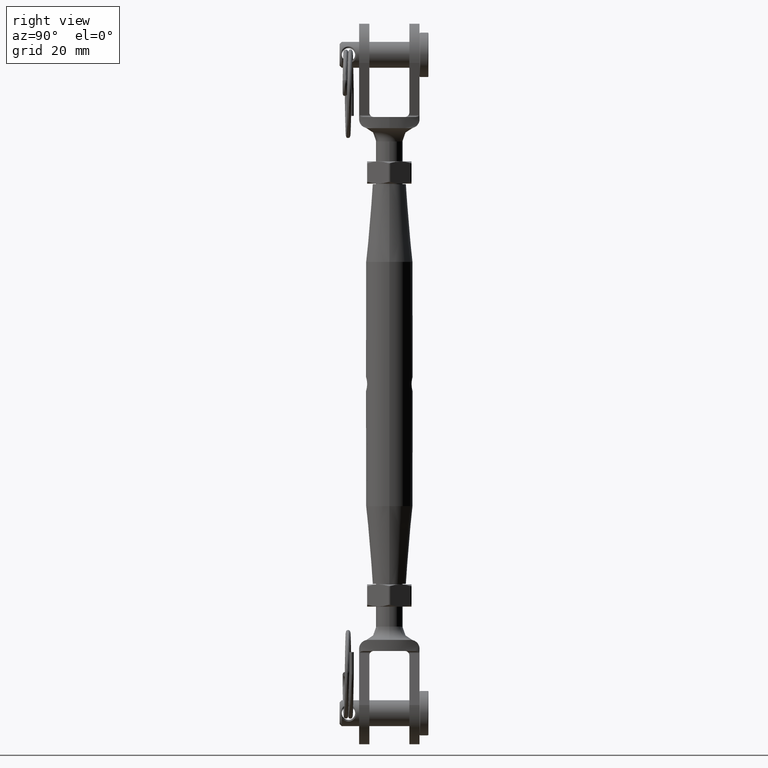
[diagram: clean part render]
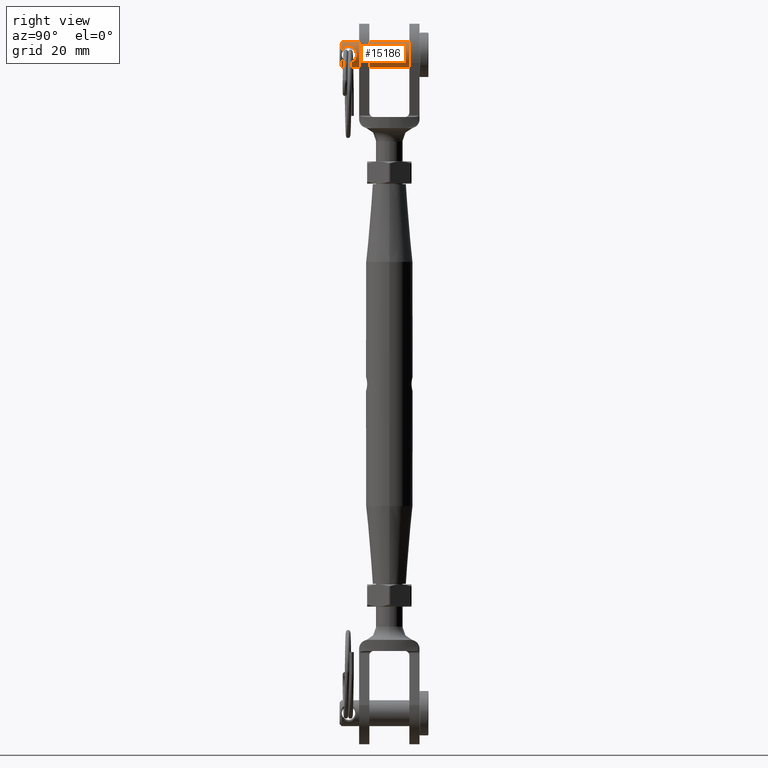
[diagram: same view with one face highlighted and labeled with its STEP entity id]
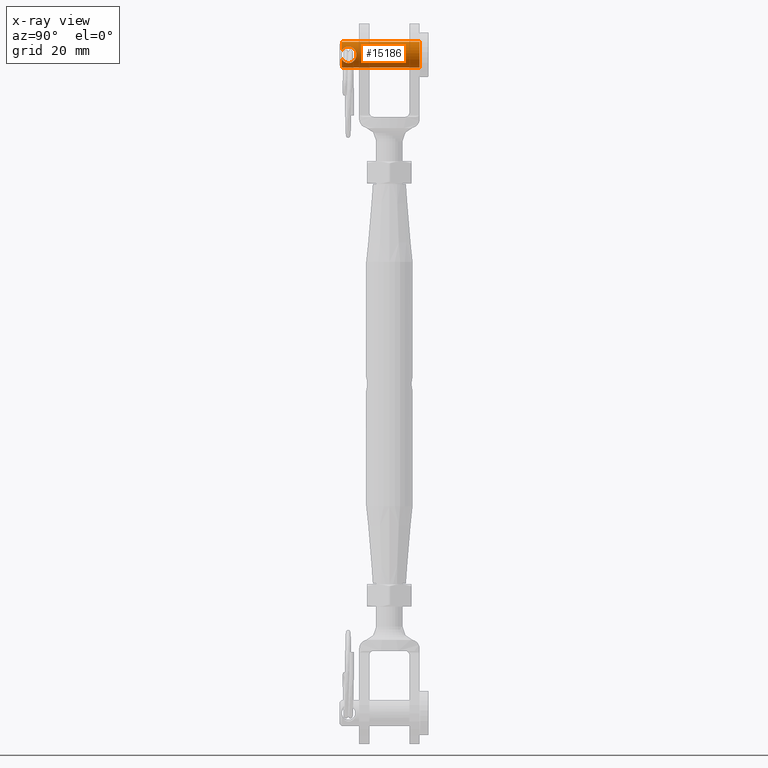
[diagram: x-ray of the same camera — body ghosted, the highlighted face saturated]
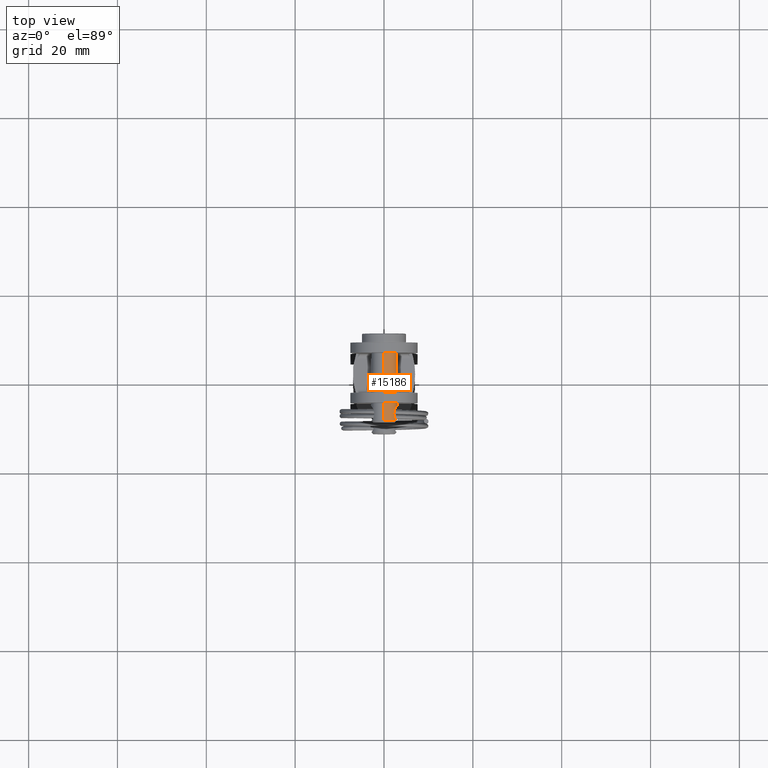
[diagram: same view with one face highlighted and labeled with its STEP entity id]
A machine part, right view. The second image highlights one B-rep face of the part: STEP entity #15186.
The next image is the same camera in x-ray: the body ghosted, the highlighted face saturated — about 0% of this face is hidden behind the body in this view.
A second angle (top view) of the same face is appended — the face is thin or edge-on in the first view.
In plain terms, the highlighted cylindrical surface (edge-blend (fillet) strip) has radius 2.9 mm, axis along (0, 1, 0).
Its self-contained STEP definition (entity closure, byte-faithful):
#178 = ORIENTED_EDGE ( 'NONE', *, *, #23157, .F. ) ;
#216 = AXIS2_PLACEMENT_3D ( 'NONE', #9148, #29250, #9237 ) ;
#236 = VERTEX_POINT ( 'NONE', #13990 ) ;
#537 = EDGE_CURVE ( 'NONE', #10482, #24558, #1447, .T. ) ;
#615 = CARTESIAN_POINT ( 'NONE',  ( -2.744661534245521400, 16.44004045895337600, 0.9657223208795287000 ) ) ;
#722 = CARTESIAN_POINT ( 'NONE',  ( -2.294106125083337700, 18.60426528350829000, 1.774749690161040200 ) ) ;
#820 = CARTESIAN_POINT ( 'NONE',  ( -2.605556378203564400, 19.32418764393705100, 1.278449941367773500 ) ) ;
#962 = EDGE_CURVE ( 'NONE', #24584, #236, #3563, .T. ) ;
#1114 = CARTESIAN_POINT ( 'NONE',  ( -2.210732446713502800, 18.00425831773796000, 1.876875608304433300 ) ) ;
#1199 = CARTESIAN_POINT ( 'NONE',  ( -2.900324119571199500, 16.20153612232974900, -0.2489128024667275100 ) ) ;
#1377 = ORIENTED_EDGE ( 'NONE', *, *, #12481, .T. ) ;
#1446 = CARTESIAN_POINT ( 'NONE',  ( -2.210727977664083400, 17.99999999999999600, -1.876880872291388100 ) ) ;
#1447 = B_SPLINE_CURVE_WITH_KNOTS ( 'NONE', 3,
 ( #9806, #18805, #820, #7839, #7738, #10085, #722, #12241, #23771, #1114 ),
 .UNSPECIFIED., .F., .F.,
 ( 4, 2, 2, 2, 4 ),
 ( 0.3421832207658255800, 0.3816374155743692000, 0.4210916103829127600, 0.4605458051914563800, 0.5000000000000000000 ),
 .UNSPECIFIED. ) ;
#1594 = VERTEX_POINT ( 'NONE', #5063 ) ;
#1788 = DIRECTION ( 'NONE',  ( -0.0000000000000000000, -1.000000000000000000, -0.0000000000000000000 ) ) ;
#1934 = DIRECTION ( 'NONE',  ( -0.0000000000000000000, -1.000000000000000000, -0.0000000000000000000 ) ) ;
#2885 = CARTESIAN_POINT ( 'NONE',  ( -2.858264125714875500, 16.26433546103258700, 0.5060697297217258100 ) ) ;
#2907 = VECTOR ( 'NONE', #1788, 1000.000000000000000 ) ;
#3370 = EDGE_CURVE ( 'NONE', #12362, #6600, #11271, .T. ) ;
#3453 = CARTESIAN_POINT ( 'NONE',  ( -2.221649457012812200, 17.75884103580907000, -1.864228788218121000 ) ) ;
#3563 = CIRCLE ( 'NONE', #4982, 2.900000000000003000 ) ;
#3748 = CARTESIAN_POINT ( 'NONE',  ( 3.551475717527325800E-016, 0.0000000000000000000, 2.900000000000001700 ) ) ;
#4684 = B_SPLINE_CURVE_WITH_KNOTS ( 'NONE', 3,
 ( #1446, #8464, #13086, #12873, #22231, #15355, #10811, #26689, #22119, #21919 ),
 .UNSPECIFIED., .F., .F.,
 ( 4, 2, 2, 2, 4 ),
 ( 0.0000000000000000000, 0.03958964347557814000, 0.07917928695115628000, 0.1187689304267344200, 0.1583585739023125600 ),
 .UNSPECIFIED. ) ;
#4982 = AXIS2_PLACEMENT_3D ( 'NONE', #23412, #27966, #25884 ) ;
#5063 = CARTESIAN_POINT ( 'NONE',  ( -2.210727977664083400, 17.99999999999999600, -1.876880872291388100 ) ) ;
#5440 = CARTESIAN_POINT ( 'NONE',  ( -2.210732446713502800, 18.00425831773796000, 1.876875608304433300 ) ) ;
#5517 = CARTESIAN_POINT ( 'NONE',  ( 3.551475717527327300E-016, 1.999999999999999100, 2.900000000000003000 ) ) ;
#5541 = CARTESIAN_POINT ( 'NONE',  ( -2.262008735606944900, 17.52714326857444900, 1.815026992286154200 ) ) ;
#5802 = ORIENTED_EDGE ( 'NONE', *, *, #15018, .T. ) ;
#6600 = VERTEX_POINT ( 'NONE', #10599 ) ;
#6985 = CARTESIAN_POINT ( 'NONE',  ( 0.0000000000000000000, 19.49999999999999600, 0.0000000000000000000 ) ) ;
#7078 = ORIENTED_EDGE ( 'NONE', *, *, #19716, .T. ) ;
#7723 = CARTESIAN_POINT ( 'NONE',  ( -2.213207700018780400, 17.88318045289172500, 1.873973681876886000 ) ) ;
#7738 = CARTESIAN_POINT ( 'NONE',  ( -2.438972241560712500, 18.99377367803615300, 1.571366693533130300 ) ) ;
#7824 = CARTESIAN_POINT ( 'NONE',  ( -2.361795564576804300, 17.19737945248703800, 1.683840306624895300 ) ) ;
#7839 = CARTESIAN_POINT ( 'NONE',  ( -2.495549880024246400, 19.11288328849772000, 1.481752033537159500 ) ) ;
#8090 = CARTESIAN_POINT ( 'NONE',  ( -2.210732446713502800, 18.00425831773796000, 1.876875608304433300 ) ) ;
#8464 = CARTESIAN_POINT ( 'NONE',  ( -2.210768010235006000, 18.15599560180954000, -1.876833718992602500 ) ) ;
#8754 = CYLINDRICAL_SURFACE ( 'NONE', #22441, 2.900000000000001700 ) ;
#9148 = CARTESIAN_POINT ( 'NONE',  ( 0.0000000000000000000, 19.49999999999999600, 0.0000000000000000000 ) ) ;
#9237 = DIRECTION ( 'NONE',  ( 0.0000000000000000000, 0.0000000000000000000, 1.000000000000000000 ) ) ;
#9806 = CARTESIAN_POINT ( 'NONE',  ( -2.709083019519304500, 19.49999992210817400, 1.034828110245393800 ) ) ;
#10072 = EDGE_CURVE ( 'NONE', #22534, #10482, #25168, .T. ) ;
#10085 = CARTESIAN_POINT ( 'NONE',  ( -2.338972617065072400, 18.74102977942472500, 1.716678763563145700 ) ) ;
#10164 = CARTESIAN_POINT ( 'NONE',  ( -2.555049998057891800, 16.77235654036712000, -1.372577893320213300 ) ) ;
#10296 = CARTESIAN_POINT ( 'NONE',  ( 3.551475717527325800E-016, 19.49999999999999600, 2.900000000000001700 ) ) ;
#10482 = VERTEX_POINT ( 'NONE', #27618 ) ;
#10599 = CARTESIAN_POINT ( 'NONE',  ( 0.0000000000000000000, 19.49999999999999600, -2.900000000000001700 ) ) ;
#10811 = CARTESIAN_POINT ( 'NONE',  ( -2.495198924310889400, 19.11219472763457700, -1.482374403171208900 ) ) ;
#11099 = ORIENTED_EDGE ( 'NONE', *, *, #3370, .T. ) ;
#11271 = CIRCLE ( 'NONE', #15403, 2.900000000000001700 ) ;
#12228 = CARTESIAN_POINT ( 'NONE',  ( -2.231822220384637000, 17.70122349967230900, 1.851815650184910300 ) ) ;
#12241 = CARTESIAN_POINT ( 'NONE',  ( -2.229556836653502100, 18.31171481417348100, 1.855191550218796800 ) ) ;
#12322 = CARTESIAN_POINT ( 'NONE',  ( -2.210727977664083400, 17.99999999999999600, -1.876880872291388100 ) ) ;
#12362 = VERTEX_POINT ( 'NONE', #28109 ) ;
#12481 = EDGE_CURVE ( 'NONE', #24558, #1594, #15867, .T. ) ;
#12523 = CARTESIAN_POINT ( 'NONE',  ( -2.663869854750165400, 16.56946117100697800, -1.161811710160033200 ) ) ;
#12626 = CARTESIAN_POINT ( 'NONE',  ( -2.403545457015329400, 17.09219962667674200, -1.624636199718334300 ) ) ;
#12873 = CARTESIAN_POINT ( 'NONE',  ( -2.292842572122663700, 18.59983229278465400, -1.776366635490987100 ) ) ;
#13086 = CARTESIAN_POINT ( 'NONE',  ( -2.228908760612488700, 18.30743930967043900, -1.855955608598585300 ) ) ;
#13331 = FACE_OUTER_BOUND ( 'NONE', #24817, .T. ) ;
#13990 = CARTESIAN_POINT ( 'NONE',  ( 0.0000000000000000000, 1.999999999999999100, -2.900000000000003000 ) ) ;
#14133 = CARTESIAN_POINT ( 'NONE',  ( -2.662411929549314900, 16.57190958555745300, 1.165085610204883700 ) ) ;
#14235 = CARTESIAN_POINT ( 'NONE',  ( -2.487154014273753200, 16.90503008030806600, 1.493367840900213800 ) ) ;
#14822 = CARTESIAN_POINT ( 'NONE',  ( -2.210697092106522100, 17.87964772113860300, -1.876917251566821300 ) ) ;
#15018 = EDGE_CURVE ( 'NONE', #1594, #12362, #4684, .T. ) ;
#15159 = ORIENTED_EDGE ( 'NONE', *, *, #962, .F. ) ;
#15186 = ADVANCED_FACE ( 'NONE', ( #13331 ), #8754, .T. ) ;
#15355 = CARTESIAN_POINT ( 'NONE',  ( -2.438427464010990900, 18.99255840788978100, -1.572203479490988300 ) ) ;
#15403 = AXIS2_PLACEMENT_3D ( 'NONE', #6985, #27191, #25113 ) ;
#15649 = DIRECTION ( 'NONE',  ( 0.0000000000000000000, 0.0000000000000000000, -1.000000000000000000 ) ) ;
#15867 = B_SPLINE_CURVE_WITH_KNOTS ( 'NONE', 3,
 ( #5440, #16701, #7723, #25842, #12228, #5541, #21378, #7824, #27726, #14235, #23652, #14133, #615, #16407, #2885, #18696, #23858, #1199, #26028, #24154, #12523, #10164, #19478, #21566, #21667, #12626, #26239, #28606, #28508, #3453, #14822, #12322 ),
 .UNSPECIFIED., .F., .F.,
 ( 4, 2, 2, 2, 2, 2, 2, 2, 2, 2, 2, 2, 2, 2, 2, 4 ),
 ( 0.5000000000000000000, 0.5156249999999998900, 0.5312499999999997800, 0.5624999999999995600, 0.5937499999999993300, 0.6249999999999992200, 0.6874999999999988900, 0.7187499999999986700, 0.7499999999999984500, 0.8124999999999980000, 0.8749999999999975600, 0.8906249999999977800, 0.9062499999999977800, 0.9374999999999984500, 0.9687499999999993300, 1.000000000000000000 ),
 .UNSPECIFIED. ) ;
#16407 = CARTESIAN_POINT ( 'NONE',  ( -2.834735063178794000, 16.29981701388675900, 0.6230760437039040100 ) ) ;
#16672 = ORIENTED_EDGE ( 'NONE', *, *, #537, .T. ) ;
#16701 = CARTESIAN_POINT ( 'NONE',  ( -2.210596276659081600, 17.94404735584962300, 1.877036000157920700 ) ) ;
#18696 = CARTESIAN_POINT ( 'NONE',  ( -2.891318792538828000, 16.21479390926634400, 0.2570136642302469100 ) ) ;
#18805 = CARTESIAN_POINT ( 'NONE',  ( -2.660238072530854300, 19.41904326619577100, 1.162699597876365000 ) ) ;
#18892 = LINE ( 'NONE', #21815, #29202 ) ;
#19478 = CARTESIAN_POINT ( 'NONE',  ( -2.533350776301699400, 16.81421590908340100, -1.412112357987651600 ) ) ;
#19716 = EDGE_CURVE ( 'NONE', #6600, #236, #18892, .T. ) ;
#21378 = CARTESIAN_POINT ( 'NONE',  ( -2.292238126342444300, 17.41085296812470100, 1.777369077938336000 ) ) ;
#21566 = CARTESIAN_POINT ( 'NONE',  ( -2.489443840657965100, 16.90286285621686000, -1.488152153370071700 ) ) ;
#21667 = CARTESIAN_POINT ( 'NONE',  ( -2.468331903346616200, 16.94737146706003400, -1.522811873234786200 ) ) ;
#21815 = CARTESIAN_POINT ( 'NONE',  ( 0.0000000000000000000, 0.0000000000000000000, -2.900000000000001700 ) ) ;
#21919 = CARTESIAN_POINT ( 'NONE',  ( -2.709082705460572600, 19.49999974872853400, -1.034828889143079000 ) ) ;
#22119 = CARTESIAN_POINT ( 'NONE',  ( -2.660191201802531800, 19.41896341389503200, -1.162822165945132100 ) ) ;
#22231 = CARTESIAN_POINT ( 'NONE',  ( -2.338556601607263200, 18.73981694212063000, -1.717237694451682500 ) ) ;
#22441 = AXIS2_PLACEMENT_3D ( 'NONE', #29056, #1934, #15649 ) ;
#22534 = VERTEX_POINT ( 'NONE', #10296 ) ;
#23157 = EDGE_CURVE ( 'NONE', #22534, #24584, #28751, .T. ) ;
#23412 = CARTESIAN_POINT ( 'NONE',  ( 0.0000000000000000000, 1.999999999999999100, 0.0000000000000000000 ) ) ;
#23652 = CARTESIAN_POINT ( 'NONE',  ( -2.531817944180592600, 16.81581124406275400, 1.417343761390797100 ) ) ;
#23771 = CARTESIAN_POINT ( 'NONE',  ( -2.211076285424175700, 18.15629511901491700, 1.876470607892708300 ) ) ;
#23858 = CARTESIAN_POINT ( 'NONE',  ( -2.899834307260479100, 16.20227063444667000, 0.1300783836181715100 ) ) ;
#24154 = CARTESIAN_POINT ( 'NONE',  ( -2.747282210714889800, 16.43584543977925000, -0.9578602830305303900 ) ) ;
#24558 = VERTEX_POINT ( 'NONE', #8090 ) ;
#24584 = VERTEX_POINT ( 'NONE', #5517 ) ;
#24817 = EDGE_LOOP ( 'NONE', ( #178, #27810, #16672, #1377, #5802, #11099, #7078, #15159 ) ) ;
#25113 = DIRECTION ( 'NONE',  ( 0.0000000000000000000, 0.0000000000000000000, 1.000000000000000000 ) ) ;
#25168 = CIRCLE ( 'NONE', #216, 2.900000000000001700 ) ;
#25842 = CARTESIAN_POINT ( 'NONE',  ( -2.223647337093165100, 17.76300923376488300, 1.861574119939385200 ) ) ;
#25884 = DIRECTION ( 'NONE',  ( 0.0000000000000000000, 0.0000000000000000000, -1.000000000000000000 ) ) ;
#26028 = CARTESIAN_POINT ( 'NONE',  ( -2.865539528901489800, 16.25197987708367000, -0.5037251983183381700 ) ) ;
#26239 = CARTESIAN_POINT ( 'NONE',  ( -2.363726600358812200, 17.19192332790377600, -1.681183222135902900 ) ) ;
#26689 = CARTESIAN_POINT ( 'NONE',  ( -2.605610642964386600, 19.32430504314639900, -1.278375813417219000 ) ) ;
#27191 = DIRECTION ( 'NONE',  ( -0.0000000000000000000, -1.000000000000000000, -0.0000000000000000000 ) ) ;
#27618 = CARTESIAN_POINT ( 'NONE',  ( -2.709083019519304500, 19.49999992210817400, 1.034828110245393800 ) ) ;
#27726 = CARTESIAN_POINT ( 'NONE',  ( -2.403293319061959600, 17.09303815041016600, 1.624888864355086700 ) ) ;
#27810 = ORIENTED_EDGE ( 'NONE', *, *, #10072, .T. ) ;
#27966 = DIRECTION ( 'NONE',  ( -0.0000000000000000000, -1.000000000000000000, -0.0000000000000000000 ) ) ;
#28109 = CARTESIAN_POINT ( 'NONE',  ( -2.709082705460572600, 19.49999974872853400, -1.034828889143079000 ) ) ;
#28508 = CARTESIAN_POINT ( 'NONE',  ( -2.263235284855957800, 17.52114574919534500, -1.813516288884522400 ) ) ;
#28560 = DIRECTION ( 'NONE',  ( -0.0000000000000000000, -1.000000000000000000, -0.0000000000000000000 ) ) ;
#28606 = CARTESIAN_POINT ( 'NONE',  ( -2.292367093780360400, 17.41000040753681700, -1.777254504843936500 ) ) ;
#28751 = LINE ( 'NONE', #3748, #2907 ) ;
#29056 = CARTESIAN_POINT ( 'NONE',  ( 0.0000000000000000000, 0.0000000000000000000, 0.0000000000000000000 ) ) ;
#29202 = VECTOR ( 'NONE', #28560, 1000.000000000000000 ) ;
#29250 = DIRECTION ( 'NONE',  ( -0.0000000000000000000, -1.000000000000000000, -0.0000000000000000000 ) ) ;